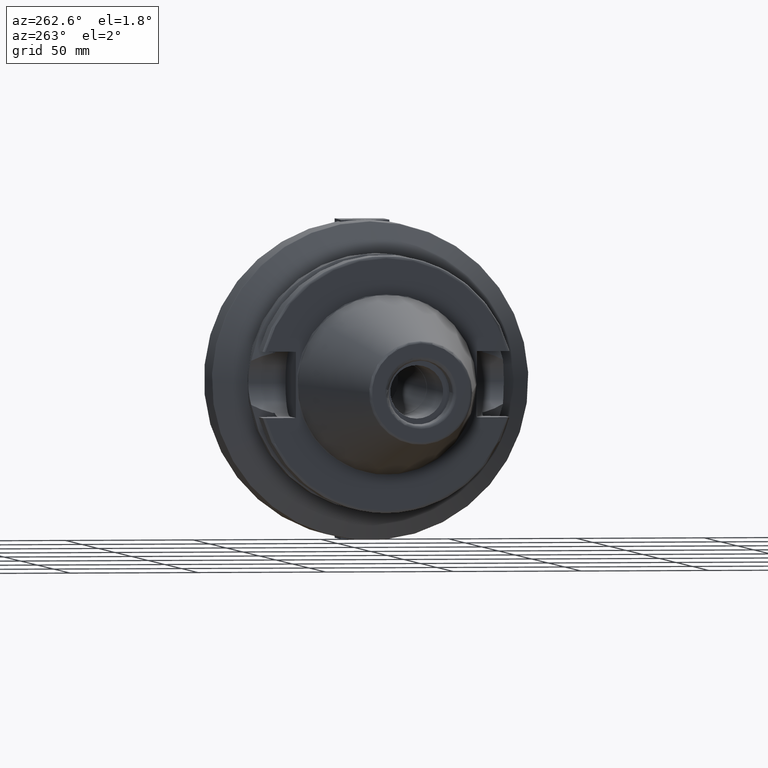
[diagram: clean part render]
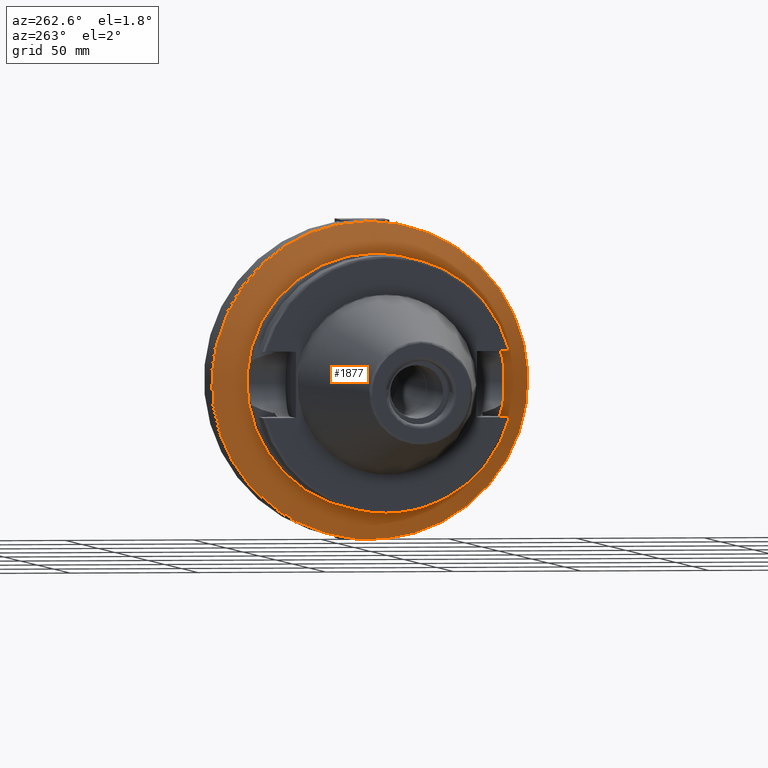
[diagram: same view with one face highlighted and labeled with its STEP entity id]
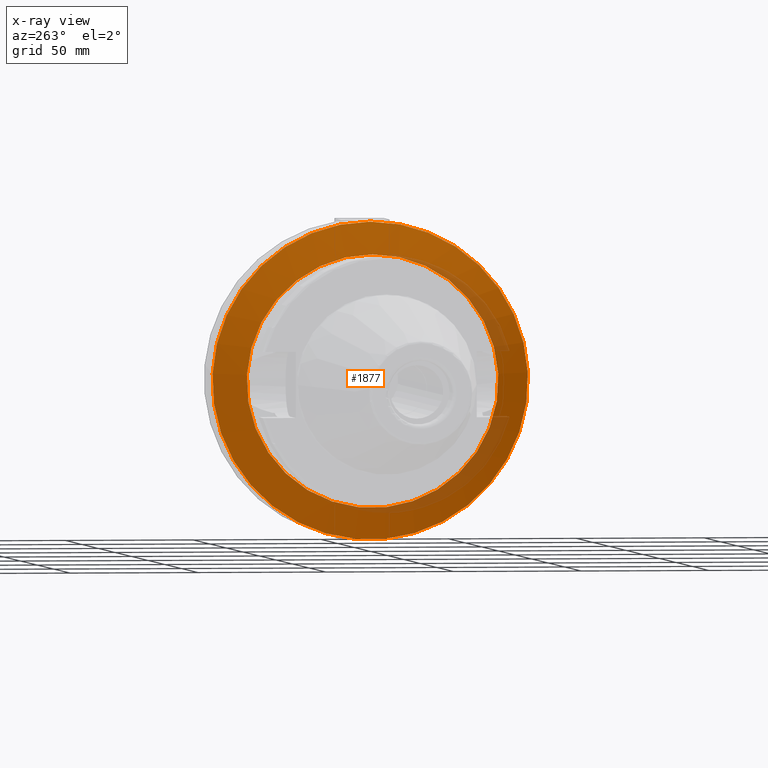
[diagram: x-ray of the same camera — body ghosted, the highlighted face saturated]
A machine part, auxiliary view. The second image highlights one B-rep face of the part: STEP entity #1877.
The next image is the same camera in x-ray: the body ghosted, the highlighted face saturated — about 12% of this face is hidden behind the body in this view.
In plain terms, the highlighted conical surface has half-angle 60 deg.
Its self-contained STEP definition (entity closure, byte-faithful):
#147=CIRCLE('',#2116,61.725);
#148=CIRCLE('',#2118,49.25);
#255=CONICAL_SURFACE('',#2117,55.4875,1.0471975511966);
#285=FACE_OUTER_BOUND('',#406,.T.);
#406=EDGE_LOOP('',(#1324,#1325,#1326,#1327));
#541=LINE('',#3093,#666);
#666=VECTOR('',#2429,55.4875);
#819=VERTEX_POINT('',#3088);
#820=VERTEX_POINT('',#3092);
#1013=EDGE_CURVE('',#819,#819,#147,.T.);
#1014=EDGE_CURVE('',#819,#820,#541,.T.);
#1015=EDGE_CURVE('',#820,#820,#148,.T.);
#1324=ORIENTED_EDGE('',*,*,#1013,.F.);
#1325=ORIENTED_EDGE('',*,*,#1014,.T.);
#1326=ORIENTED_EDGE('',*,*,#1015,.F.);
#1327=ORIENTED_EDGE('',*,*,#1014,.F.);
#1877=ADVANCED_FACE('',(#285),#255,.T.);
#2116=AXIS2_PLACEMENT_3D('',#3090,#2425,#2426);
#2117=AXIS2_PLACEMENT_3D('',#3091,#2427,#2428);
#2118=AXIS2_PLACEMENT_3D('',#3094,#2430,#2431);
#2425=DIRECTION('center_axis',(1.,0.,0.));
#2426=DIRECTION('ref_axis',(0.,0.,1.));
#2427=DIRECTION('center_axis',(1.,0.,0.));
#2428=DIRECTION('ref_axis',(0.,0.,-1.));
#2429=DIRECTION('',(-0.500000000000001,1.06057523872491E-16,-0.866025403784438));
#2430=DIRECTION('center_axis',(-1.,0.,0.));
#2431=DIRECTION('ref_axis',(0.,0.,1.));
#3088=CARTESIAN_POINT('',(51.546782175438,-7.55913236773704E-15,61.725));
#3090=CARTESIAN_POINT('Origin',(51.546782175438,-7.55913236773704E-15,0.));
#3091=CARTESIAN_POINT('Origin',(47.9455598713677,0.,0.));
#3092=CARTESIAN_POINT('',(44.3443375672974,-6.03138548580071E-15,49.25));
#3093=CARTESIAN_POINT('',(47.9455598713677,-6.79525892676888E-15,55.4875));
#3094=CARTESIAN_POINT('Origin',(44.3443375672974,-6.03138548580072E-15,
0.));